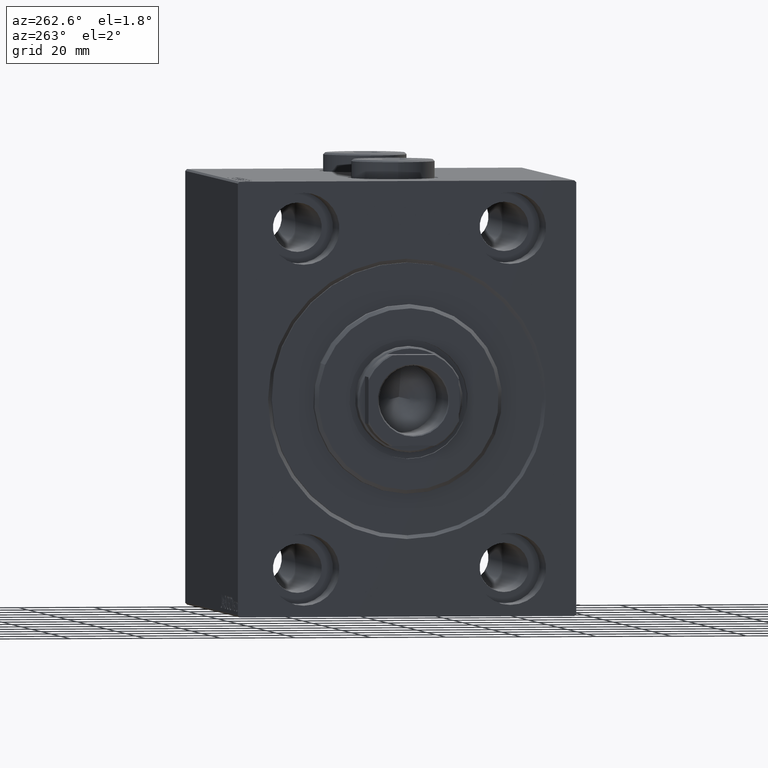
[diagram: clean part render]
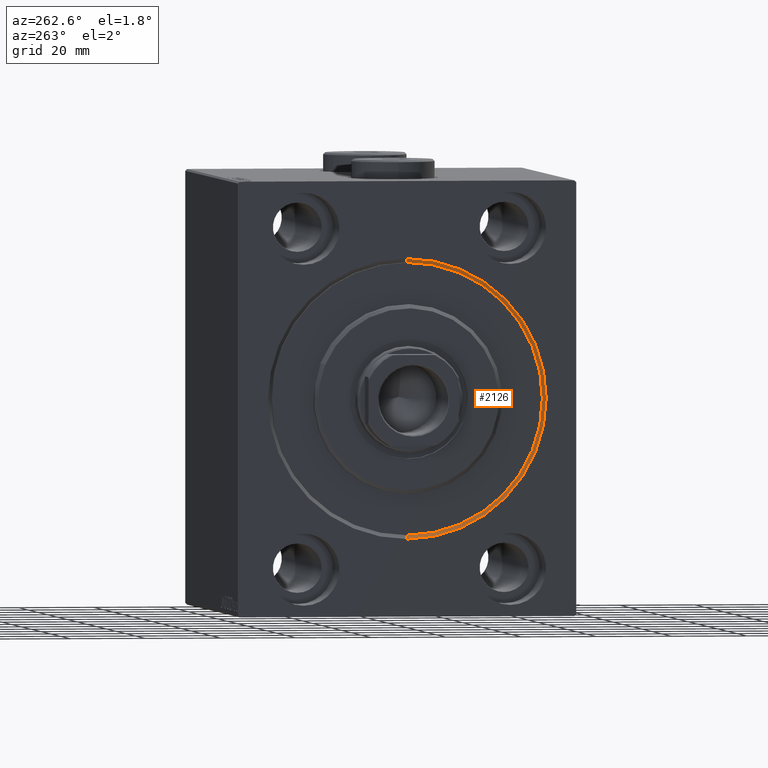
[diagram: same view with one face highlighted and labeled with its STEP entity id]
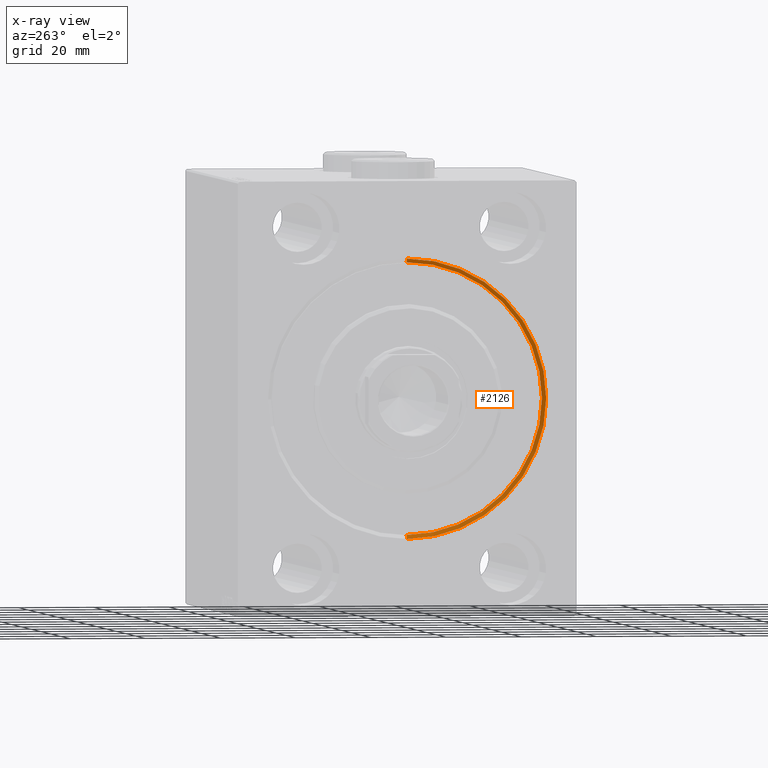
[diagram: x-ray of the same camera — body ghosted, the highlighted face saturated]
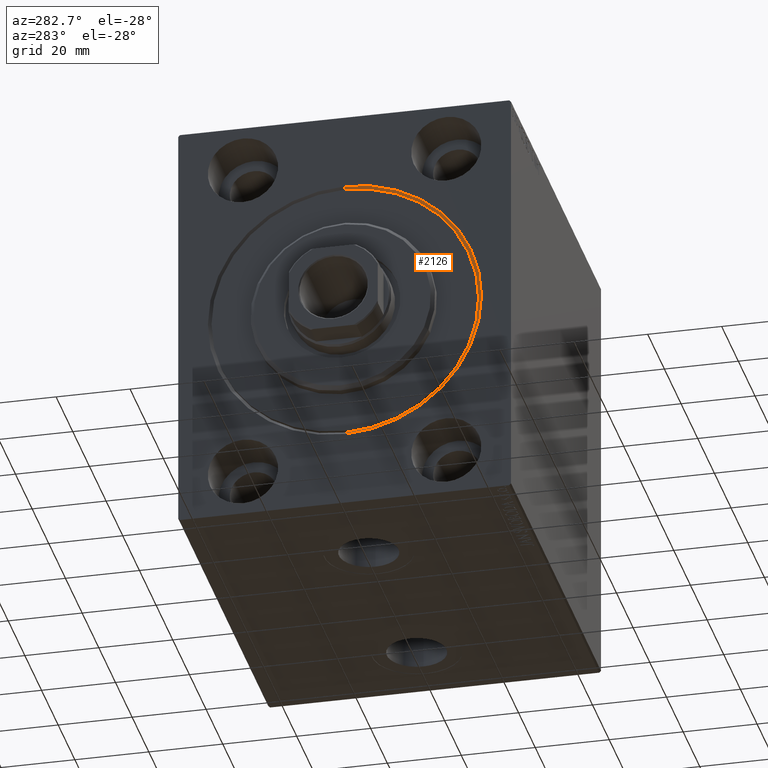
[diagram: same view with one face highlighted and labeled with its STEP entity id]
A machine part, auxiliary view. The second image highlights one B-rep face of the part: STEP entity #2126.
The next image is the same camera in x-ray: the body ghosted, the highlighted face saturated — about 0% of this face is hidden behind the body in this view.
A second angle (auxiliary view) of the same face is appended — the face is thin or edge-on in the first view.
In plain terms, the highlighted conical surface has half-angle 45 deg.
Its self-contained STEP definition (entity closure, byte-faithful):
#838 = CARTESIAN_POINT ( 'NONE',  ( 1.000000000000021760, 0.000000000000000000, 0.000000000000000000 ) ) ;
#2126 = ADVANCED_FACE ( 'NONE', ( #35675 ), #8823, .F. ) ;
#2761 = VERTEX_POINT ( 'NONE', #29869 ) ;
#3350 = ORIENTED_EDGE ( 'NONE', *, *, #19801, .F. ) ;
#3832 = EDGE_CURVE ( 'NONE', #40089, #23254, #37367, .T. ) ;
#5796 = DIRECTION ( 'NONE',  ( -0.7071067811865425767, 0.000000000000000000, 0.7071067811865525687 ) ) ;
#7667 = AXIS2_PLACEMENT_3D ( 'NONE', #43500, #8419, #8884 ) ;
#7903 = EDGE_CURVE ( 'NONE', #12559, #2761, #29645, .T. ) ;
#8419 = DIRECTION ( 'NONE',  ( 1.000000000000000000, 0.000000000000000000, 0.000000000000000000 ) ) ;
#8823 = CONICAL_SURFACE ( 'NONE', #19802, 36.00000000000000000, 0.7853981633974552734 ) ;
#8884 = DIRECTION ( 'NONE',  ( 0.000000000000000000, 0.000000000000000000, -1.000000000000000000 ) ) ;
#10687 = DIRECTION ( 'NONE',  ( 0.000000000000000000, 0.000000000000000000, 1.000000000000000000 ) ) ;
#12559 = VERTEX_POINT ( 'NONE', #38589 ) ;
#15777 = ORIENTED_EDGE ( 'NONE', *, *, #3832, .T. ) ;
#16605 = EDGE_CURVE ( 'NONE', #40089, #12559, #23702, .T. ) ;
#17187 = CIRCLE ( 'NONE', #7667, 37.00000000000003553 ) ;
#19801 = EDGE_CURVE ( 'NONE', #2761, #23254, #17187, .T. ) ;
#19802 = AXIS2_PLACEMENT_3D ( 'NONE', #838, #35899, #10687 ) ;
#20262 = CARTESIAN_POINT ( 'NONE',  ( 0.000000000000000000, 4.531193156845210737E-15, -37.00000000000003553 ) ) ;
#22544 = CARTESIAN_POINT ( 'NONE',  ( 1.000000000000021760, 0.000000000000000000, 36.00000000000000000 ) ) ;
#23254 = VERTEX_POINT ( 'NONE', #20262 ) ;
#23702 = CIRCLE ( 'NONE', #38334, 36.00000000000000000 ) ;
#23740 = DIRECTION ( 'NONE',  ( 0.000000000000000000, 0.000000000000000000, -1.000000000000000000 ) ) ;
#27185 = CARTESIAN_POINT ( 'NONE',  ( 1.000000000000021760, 0.000000000000000000, 0.000000000000000000 ) ) ;
#28706 = VECTOR ( 'NONE', #5796, 999.9999999999998863 ) ;
#29645 = LINE ( 'NONE', #22544, #28706 ) ;
#29869 = CARTESIAN_POINT ( 'NONE',  ( 0.000000000000000000, 0.000000000000000000, 37.00000000000003553 ) ) ;
#29902 = ORIENTED_EDGE ( 'NONE', *, *, #16605, .F. ) ;
#31080 = ORIENTED_EDGE ( 'NONE', *, *, #7903, .F. ) ;
#34584 = CARTESIAN_POINT ( 'NONE',  ( 1.000000000000021760, 4.408728476930470856E-15, -36.00000000000000000 ) ) ;
#35675 = FACE_OUTER_BOUND ( 'NONE', #40220, .T. ) ;
#35899 = DIRECTION ( 'NONE',  ( -1.000000000000000000, 0.000000000000000000, 0.000000000000000000 ) ) ;
#37367 = LINE ( 'NONE', #34584, #39573 ) ;
#37494 = DIRECTION ( 'NONE',  ( -1.000000000000000000, 0.000000000000000000, 0.000000000000000000 ) ) ;
#38334 = AXIS2_PLACEMENT_3D ( 'NONE', #27185, #37494, #23740 ) ;
#38589 = CARTESIAN_POINT ( 'NONE',  ( 1.000000000000021760, 0.000000000000000000, 36.00000000000000000 ) ) ;
#39573 = VECTOR ( 'NONE', #41904, 999.9999999999998863 ) ;
#40089 = VERTEX_POINT ( 'NONE', #41229 ) ;
#40220 = EDGE_LOOP ( 'NONE', ( #29902, #15777, #3350, #31080 ) ) ;
#41229 = CARTESIAN_POINT ( 'NONE',  ( 1.000000000000021760, 4.408728476930470856E-15, -36.00000000000000000 ) ) ;
#41904 = DIRECTION ( 'NONE',  ( -0.7071067811865425767, 8.659560562354994488E-17, -0.7071067811865525687 ) ) ;
#43500 = CARTESIAN_POINT ( 'NONE',  ( 0.000000000000000000, 0.000000000000000000, 0.000000000000000000 ) ) ;